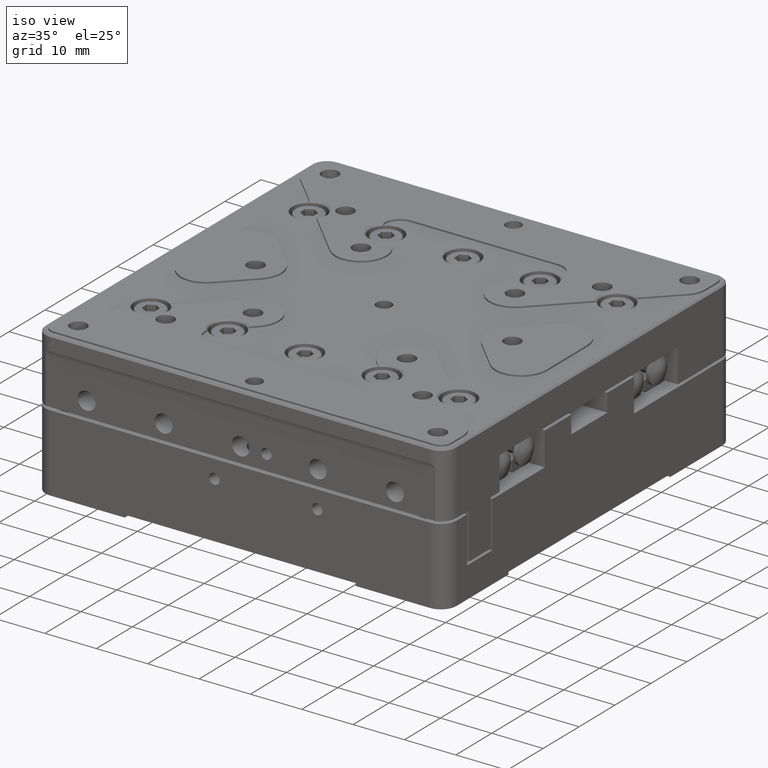
[diagram: clean part render]
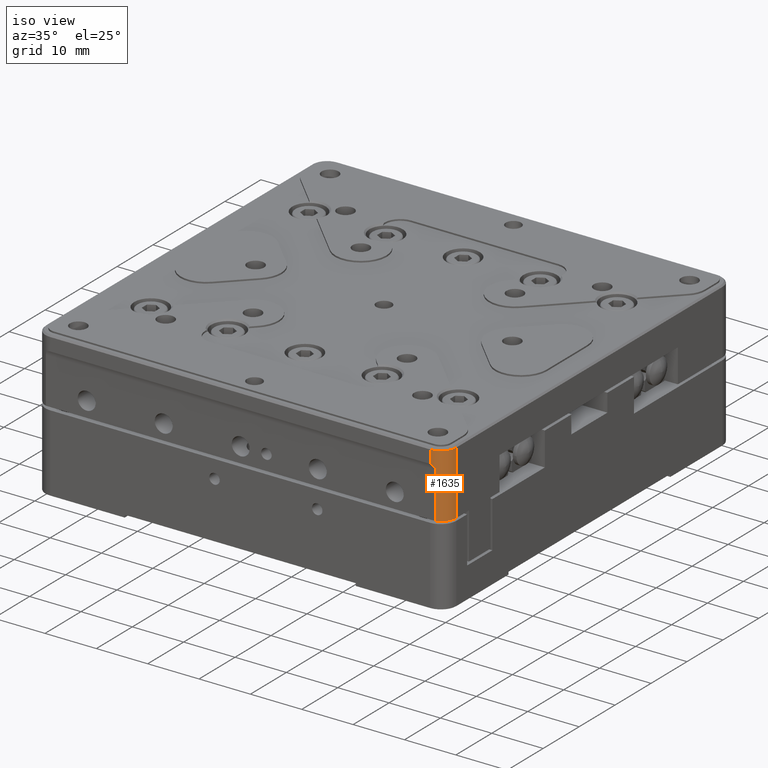
[diagram: same view with one face highlighted and labeled with its STEP entity id]
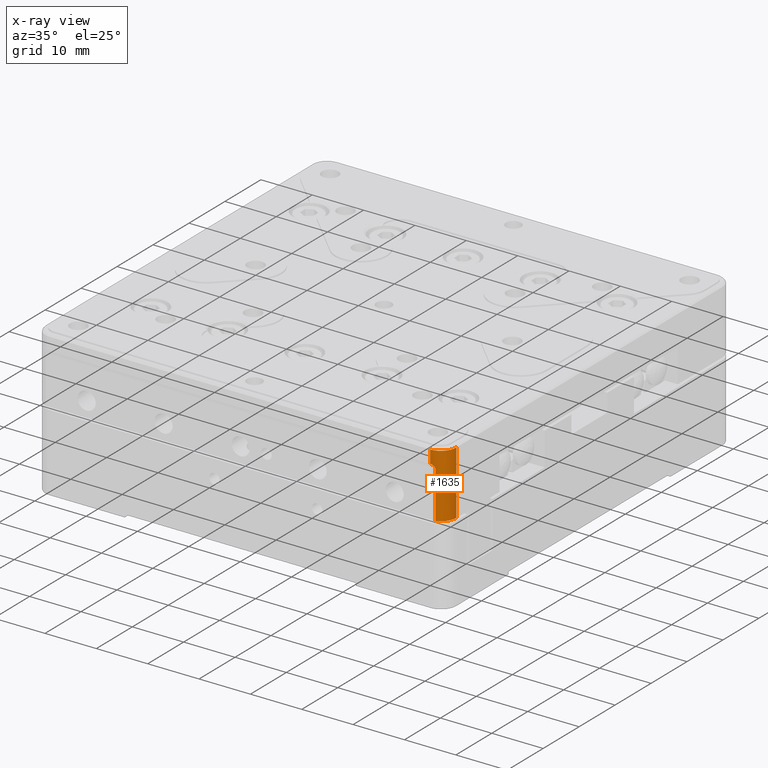
[diagram: x-ray of the same camera — body ghosted, the highlighted face saturated]
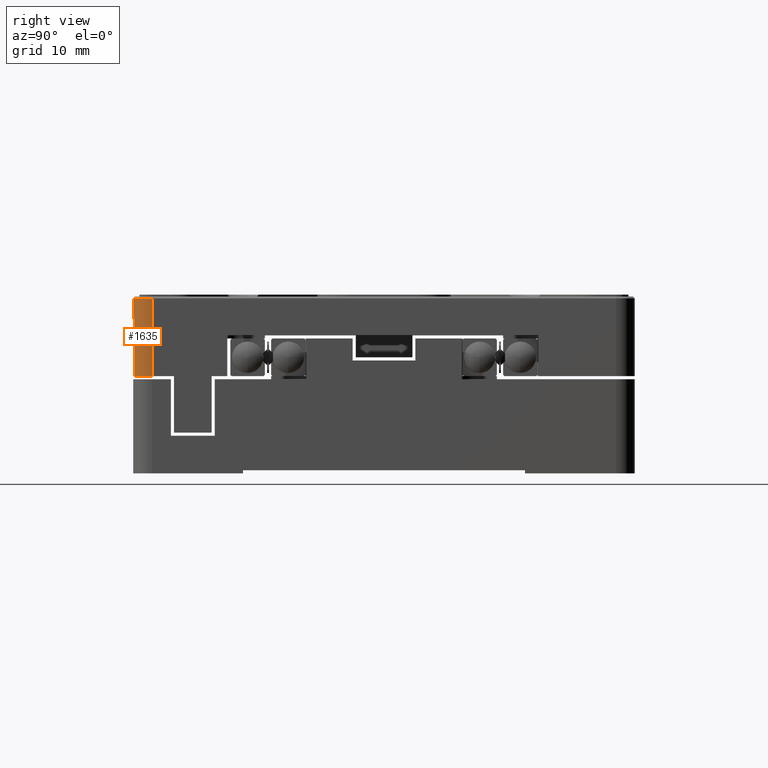
[diagram: same view with one face highlighted and labeled with its STEP entity id]
A machine part, iso view. The second image highlights one B-rep face of the part: STEP entity #1635.
The next image is the same camera in x-ray: the body ghosted, the highlighted face saturated — about 0% of this face is hidden behind the body in this view.
A second angle (right view) of the same face is appended — the face is thin or edge-on in the first view.
In plain terms, the highlighted cylindrical surface (edge-blend (fillet) strip) has radius 3 mm, axis along (0, 0, -1).
Its self-contained STEP definition (entity closure, byte-faithful):
#1110 = VERTEX_POINT ( 'NONE', #27901 ) ;
#1179 = CARTESIAN_POINT ( 'NONE',  ( 37.69659125620637496, -39.91837873532012537, 10.08213356238375091 ) ) ;
#1635 = ADVANCED_FACE ( 'NONE', ( #28435 ), #28726, .T. ) ;
#1817 = CARTESIAN_POINT ( 'NONE',  ( 37.00000000000000000, -37.00000000000000000, 30.44679999999999964 ) ) ;
#2492 = EDGE_CURVE ( 'NONE', #1110, #19375, #25085, .T. ) ;
#2642 = CARTESIAN_POINT ( 'NONE',  ( 40.00000000000000000, -37.00000043457999510, 0.000000000000000000 ) ) ;
#3527 = CARTESIAN_POINT ( 'NONE',  ( 37.45938574414123678, -39.96506163602884243, 10.25048085552212740 ) ) ;
#3666 = CARTESIAN_POINT ( 'NONE',  ( 37.06035737505917638, -39.99999999198054468, 10.35293610546080245 ) ) ;
#3995 = CARTESIAN_POINT ( 'NONE',  ( 37.93674969975985078, -39.84999999999999432, 9.500000000000000000 ) ) ;
#4861 = EDGE_CURVE ( 'NONE', #16032, #13463, #23483, .T. ) ;
#5533 = EDGE_CURVE ( 'NONE', #13463, #1110, #16674, .T. ) ;
#5880 = CARTESIAN_POINT ( 'NONE',  ( 37.23568272606472362, -39.99129303903163191, 10.32875534203736478 ) ) ;
#6020 = CARTESIAN_POINT ( 'NONE',  ( 37.93674969975985078, -39.84999999999999432, 9.500000000000000000 ) ) ;
#6173 = CARTESIAN_POINT ( 'NONE',  ( 37.91162835200234582, -39.85862354609897551, 9.734950239219152479 ) ) ;
#6443 = EDGE_CURVE ( 'NONE', #7518, #18922, #11616, .T. ) ;
#6486 = CARTESIAN_POINT ( 'NONE',  ( 40.00000000000000000, -37.00000021729000110, 0.5000000000000000000 ) ) ;
#6608 = CARTESIAN_POINT ( 'NONE',  ( 37.00000026571569833, -40.00000000006709655, 12.89999999991567847 ) ) ;
#7032 = DIRECTION ( 'NONE',  ( 0.000000000000000000, 0.000000000000000000, -1.000000000000000000 ) ) ;
#7135 = DIRECTION ( 'NONE',  ( -1.000000000000000000, 0.000000000000000000, 0.000000000000000000 ) ) ;
#7378 = LINE ( 'NONE', #27677, #28226 ) ;
#7518 = VERTEX_POINT ( 'NONE', #6486 ) ;
#8087 = CARTESIAN_POINT ( 'NONE',  ( 37.62832175364912501, -39.93355675403414295, 10.14125921519152662 ) ) ;
#9247 = CARTESIAN_POINT ( 'NONE',  ( 37.00000000000000000, -37.00000000000000000, 0.5000000000000000000 ) ) ;
#9606 = DIRECTION ( 'NONE',  ( 0.000000000000000000, 0.000000000000000000, -1.000000000000000000 ) ) ;
#10363 = DIRECTION ( 'NONE',  ( -1.000000000000000000, 0.000000000000000000, 0.000000000000000000 ) ) ;
#11616 = CIRCLE ( 'NONE', #24754, 3.000000000000002665 ) ;
#12440 = CARTESIAN_POINT ( 'NONE',  ( 37.93674969975985078, -39.84999999999999432, 0.5000000000000000000 ) ) ;
#12747 = EDGE_CURVE ( 'NONE', #19375, #18922, #7378, .T. ) ;
#12865 = DIRECTION ( 'NONE',  ( 0.000000000000000000, 0.000000000000000000, -1.000000000000000000 ) ) ;
#13463 = VERTEX_POINT ( 'NONE', #6608 ) ;
#13508 = VECTOR ( 'NONE', #14312, 1000.000000000000000 ) ;
#14104 = ORIENTED_EDGE ( 'NONE', *, *, #5533, .T. ) ;
#14312 = DIRECTION ( 'NONE',  ( 0.000000000000000000, 0.000000000000000000, -1.000000000000000000 ) ) ;
#14436 = EDGE_CURVE ( 'NONE', #16032, #7518, #22798, .T. ) ;
#14863 = CARTESIAN_POINT ( 'NONE',  ( 37.11960447923120654, -39.99817864065371964, 10.34809995277611350 ) ) ;
#15157 = CARTESIAN_POINT ( 'NONE',  ( 37.40544421631552297, -39.97303761761281038, 10.27491863970676711 ) ) ;
#15296 = CARTESIAN_POINT ( 'NONE',  ( 37.73675998923521036, -39.90834872948366296, 10.03930513892214904 ) ) ;
#15977 = DIRECTION ( 'NONE',  ( 0.000000000000000000, 0.000000000000000000, -1.000000000000000000 ) ) ;
#16032 = VERTEX_POINT ( 'NONE', #20033 ) ;
#16226 = CARTESIAN_POINT ( 'NONE',  ( 37.00000079719974622, -40.00000000000000000, 30.44679999999999964 ) ) ;
#16454 = DIRECTION ( 'NONE',  ( -1.000000000000000000, 0.000000000000000000, 0.000000000000000000 ) ) ;
#16674 = LINE ( 'NONE', #16226, #13508 ) ;
#16999 = ORIENTED_EDGE ( 'NONE', *, *, #14436, .F. ) ;
#17030 = EDGE_LOOP ( 'NONE', ( #25473, #14104, #28923, #26526, #19683, #16999 ) ) ;
#17349 = CARTESIAN_POINT ( 'NONE',  ( 37.00000039859985179, -40.00000000000000000, 10.35293610546080068 ) ) ;
#18922 = VERTEX_POINT ( 'NONE', #12440 ) ;
#19375 = VERTEX_POINT ( 'NONE', #3995 ) ;
#19412 = CARTESIAN_POINT ( 'NONE',  ( 37.83566508061988287, -39.88138206086141935, 9.898693171311602867 ) ) ;
#19683 = ORIENTED_EDGE ( 'NONE', *, *, #6443, .F. ) ;
#20033 = CARTESIAN_POINT ( 'NONE',  ( 40.00000000001725198, -36.99999991373999819, 12.89999999998273950 ) ) ;
#20633 = VECTOR ( 'NONE', #23237, 1000.000000000000000 ) ;
#21307 = CARTESIAN_POINT ( 'NONE',  ( 37.93667645069476180, -39.85002407580339678, 9.620246174569999198 ) ) ;
#21755 = CARTESIAN_POINT ( 'NONE',  ( 37.53513080837884530, -39.95199787597591268, 10.20714295327488941 ) ) ;
#22219 = AXIS2_PLACEMENT_3D ( 'NONE', #1817, #12865, #10363 ) ;
#22798 = LINE ( 'NONE', #2642, #20633 ) ;
#23237 = DIRECTION ( 'NONE',  ( 0.000000000000000000, 0.000000000000000000, -1.000000000000000000 ) ) ;
#23483 = CIRCLE ( 'NONE', #23954, 3.000000000000002665 ) ;
#23954 = AXIS2_PLACEMENT_3D ( 'NONE', #28348, #15977, #7135 ) ;
#24118 = CARTESIAN_POINT ( 'NONE',  ( 37.60658093614912190, -39.93813461502216455, 10.15823736271908118 ) ) ;
#24250 = CARTESIAN_POINT ( 'NONE',  ( 37.80664817465203953, -39.88974502964494206, 9.946825648819430654 ) ) ;
#24754 = AXIS2_PLACEMENT_3D ( 'NONE', #9247, #7032, #16454 ) ;
#25085 = B_SPLINE_CURVE_WITH_KNOTS ( 'NONE', 3,
 ( #17349, #3666, #14863, #5880, #26304, #15157, #3527, #21755, #28232, #24118, #8087, #1179, #15296, #24250, #19412, #6173, #21307, #6020 ),
 .UNSPECIFIED., .F., .F.,
 ( 4, 2, 2, 2, 2, 2, 2, 2, 4 ),
 ( 0.000000000000000000, 0.1249999999999870937, 0.2499999999999741873, 0.3749999999999612532, 0.4374999999999622524, 0.4999999999999632516, 0.6249999999999734657, 0.7499999999999835687, 1.000000000000000000 ),
 .UNSPECIFIED. ) ;
#25473 = ORIENTED_EDGE ( 'NONE', *, *, #4861, .T. ) ;
#26304 = CARTESIAN_POINT ( 'NONE',  ( 37.29067905713933584, -39.98644326482607170, 10.31488590678233308 ) ) ;
#26526 = ORIENTED_EDGE ( 'NONE', *, *, #12747, .T. ) ;
#27677 = CARTESIAN_POINT ( 'NONE',  ( 37.93674969975995026, -39.84999999999999432, 30.44679999999999964 ) ) ;
#27901 = CARTESIAN_POINT ( 'NONE',  ( 37.00000039859985179, -40.00000000000000000, 10.35293610546080068 ) ) ;
#28226 = VECTOR ( 'NONE', #9606, 1000.000000000000000 ) ;
#28232 = CARTESIAN_POINT ( 'NONE',  ( 37.55951875082268998, -39.94745894213453852, 10.19158344819743078 ) ) ;
#28348 = CARTESIAN_POINT ( 'NONE',  ( 37.00000000000000000, -37.00000000000000000, 12.89999999996551949 ) ) ;
#28435 = FACE_OUTER_BOUND ( 'NONE', #17030, .T. ) ;
#28726 = CYLINDRICAL_SURFACE ( 'NONE', #22219, 3.000000000000002665 ) ;
#28923 = ORIENTED_EDGE ( 'NONE', *, *, #2492, .T. ) ;